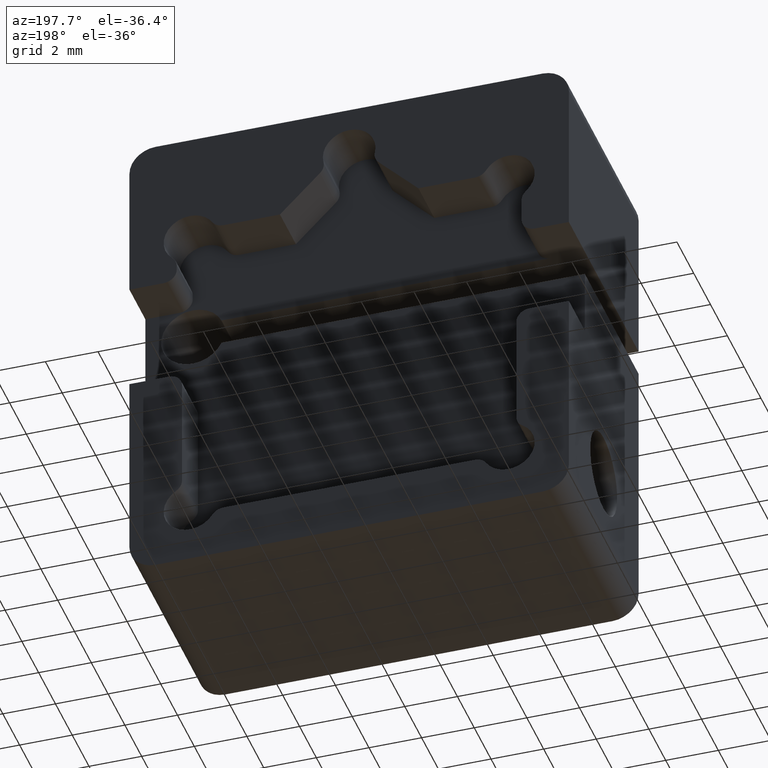
[diagram: clean part render]
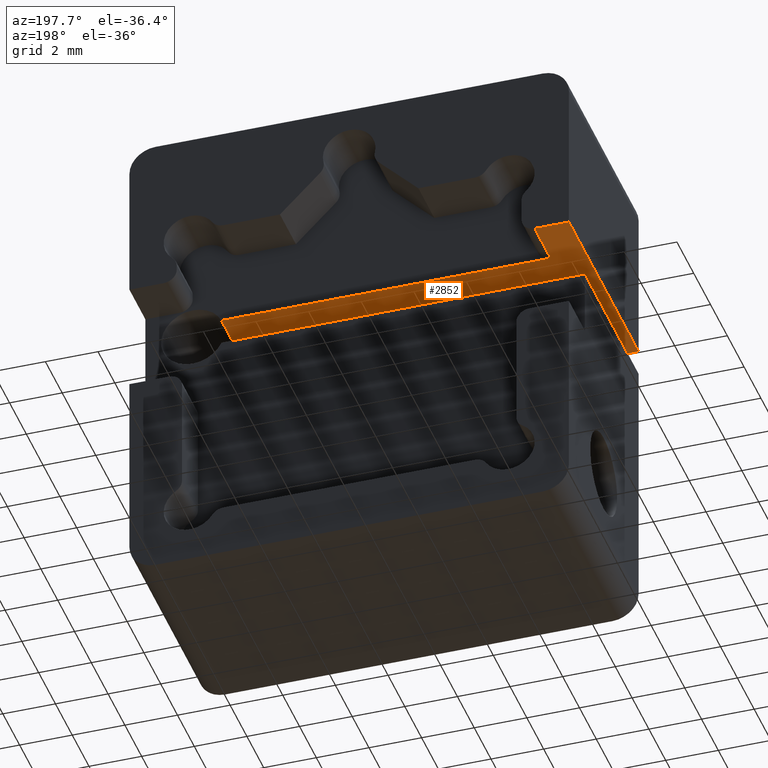
[diagram: same view with one face highlighted and labeled with its STEP entity id]
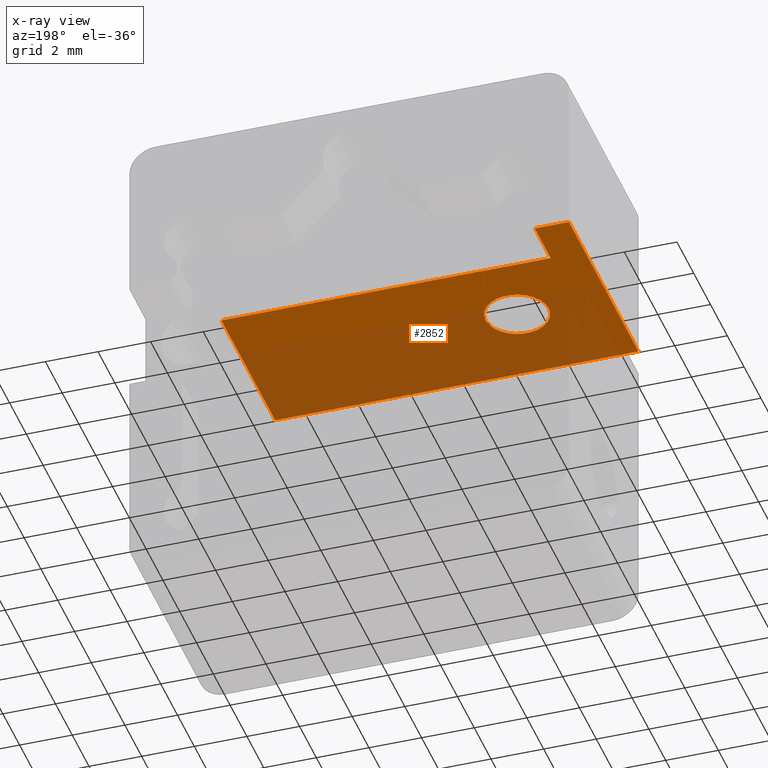
[diagram: x-ray of the same camera — body ghosted, the highlighted face saturated]
A machine part, auxiliary view. The second image highlights one B-rep face of the part: STEP entity #2852.
The next image is the same camera in x-ray: the body ghosted, the highlighted face saturated — about 60% of this face is hidden behind the body in this view.
In plain terms, the highlighted planar face has unit normal (-0, 0, 1).
Its self-contained STEP definition (entity closure, byte-faithful):
#29 = EDGE_CURVE ( 'NONE', #2679, #2850, #478, .T. ) ;
#38 = CARTESIAN_POINT ( 'NONE',  ( 5.459128788536435017, 0.000000000000000000, 2.500000000000003997 ) ) ;
#91 = EDGE_CURVE ( 'NONE', #1171, #2679, #292, .T. ) ;
#162 = VERTEX_POINT ( 'NONE', #1281 ) ;
#197 = CARTESIAN_POINT ( 'NONE',  ( 5.459128788536435017, 0.000000000000000000, 2.500000000000004441 ) ) ;
#292 = LINE ( 'NONE', #718, #1452 ) ;
#373 = CARTESIAN_POINT ( 'NONE',  ( 5.459128788536435017, 6.399999999999998579, 2.500000000000003997 ) ) ;
#433 = AXIS2_PLACEMENT_3D ( 'NONE', #610, #2752, #2767 ) ;
#445 = CARTESIAN_POINT ( 'NONE',  ( -4.849999999999996980, 3.500000000000000000, 2.500000000000003109 ) ) ;
#478 = LINE ( 'NONE', #2161, #2700 ) ;
#481 = AXIS2_PLACEMENT_3D ( 'NONE', #1888, #986, #2851 ) ;
#497 = EDGE_CURVE ( 'NONE', #1428, #2451, #711, .T. ) ;
#563 = DIRECTION ( 'NONE',  ( 1.000000000000000000, -0.000000000000000000, 9.421612521006090234E-17 ) ) ;
#610 = CARTESIAN_POINT ( 'NONE',  ( 5.459128788536435017, 0.000000000000000000, 2.500000000000004441 ) ) ;
#647 = VECTOR ( 'NONE', #1608, 1000.000000000000000 ) ;
#699 = EDGE_CURVE ( 'NONE', #162, #1171, #2428, .T. ) ;
#711 = CIRCLE ( 'NONE', #3053, 1.199999999999998401 ) ;
#718 = CARTESIAN_POINT ( 'NONE',  ( -7.049999999999997158, 0.000000000000000000, 2.500000000000003109 ) ) ;
#789 = EDGE_CURVE ( 'NONE', #2550, #2235, #3002, .T. ) ;
#841 = VECTOR ( 'NONE', #563, 1000.000000000000000 ) ;
#895 = CARTESIAN_POINT ( 'NONE',  ( 5.459128788536435017, 0.000000000000000000, 2.500000000000003997 ) ) ;
#911 = ORIENTED_EDGE ( 'NONE', *, *, #789, .F. ) ;
#986 = DIRECTION ( 'NONE',  ( -9.421612521006091466E-17, 0.000000000000000000, 1.000000000000000000 ) ) ;
#1110 = EDGE_LOOP ( 'NONE', ( #2098, #1866, #2192, #3060, #911, #1949 ) ) ;
#1127 = CARTESIAN_POINT ( 'NONE',  ( -8.349999999999999645, 0.000000000000000000, 2.500000000000003109 ) ) ;
#1161 = LINE ( 'NONE', #1127, #2135 ) ;
#1171 = VERTEX_POINT ( 'NONE', #3008 ) ;
#1238 = VECTOR ( 'NONE', #2542, 1000.000000000000000 ) ;
#1258 = CARTESIAN_POINT ( 'NONE',  ( -6.049999999999994493, 3.500000000000000000, 2.500000000000003109 ) ) ;
#1281 = CARTESIAN_POINT ( 'NONE',  ( -8.349999999999999645, 8.300000000000000711, 2.500000000000003109 ) ) ;
#1284 = CIRCLE ( 'NONE', #481, 1.199999999999998401 ) ;
#1428 = VERTEX_POINT ( 'NONE', #1258 ) ;
#1452 = VECTOR ( 'NONE', #2873, 1000.000000000000000 ) ;
#1608 = DIRECTION ( 'NONE',  ( -0.000000000000000000, 1.000000000000000000, -0.000000000000000000 ) ) ;
#1637 = ORIENTED_EDGE ( 'NONE', *, *, #497, .T. ) ;
#1686 = DIRECTION ( 'NONE',  ( 1.000000000000000000, 0.000000000000000000, 0.000000000000000000 ) ) ;
#1708 = DIRECTION ( 'NONE',  ( 1.000000000000000000, -0.000000000000000000, 9.421612521006091466E-17 ) ) ;
#1746 = CARTESIAN_POINT ( 'NONE',  ( -7.049999999999998046, 6.400000000000000355, 2.500000000000003109 ) ) ;
#1792 = PLANE ( 'NONE',  #433 ) ;
#1810 = CARTESIAN_POINT ( 'NONE',  ( -3.649999999999998135, 3.500000000000000000, 2.500000000000003109 ) ) ;
#1843 = DIRECTION ( 'NONE',  ( -0.000000000000000000, 1.000000000000000000, -0.000000000000000000 ) ) ;
#1866 = ORIENTED_EDGE ( 'NONE', *, *, #91, .T. ) ;
#1888 = CARTESIAN_POINT ( 'NONE',  ( -4.849999999999996980, 3.500000000000000000, 2.500000000000003109 ) ) ;
#1910 = DIRECTION ( 'NONE',  ( -9.421612521006091466E-17, 0.000000000000000000, 1.000000000000000000 ) ) ;
#1949 = ORIENTED_EDGE ( 'NONE', *, *, #2467, .T. ) ;
#2037 = FACE_OUTER_BOUND ( 'NONE', #1110, .T. ) ;
#2098 = ORIENTED_EDGE ( 'NONE', *, *, #699, .T. ) ;
#2135 = VECTOR ( 'NONE', #1843, 1000.000000000000000 ) ;
#2161 = CARTESIAN_POINT ( 'NONE',  ( -2.355403130251526626E-16, 6.400000000000000355, 2.500000000000003997 ) ) ;
#2192 = ORIENTED_EDGE ( 'NONE', *, *, #29, .T. ) ;
#2207 = CARTESIAN_POINT ( 'NONE',  ( 5.459128788536435017, 8.300000000000000711, 2.500000000000004441 ) ) ;
#2235 = VERTEX_POINT ( 'NONE', #38 ) ;
#2269 = FACE_BOUND ( 'NONE', #2613, .T. ) ;
#2400 = EDGE_CURVE ( 'NONE', #2235, #2850, #2819, .T. ) ;
#2428 = LINE ( 'NONE', #2207, #841 ) ;
#2451 = VERTEX_POINT ( 'NONE', #1810 ) ;
#2467 = EDGE_CURVE ( 'NONE', #2550, #162, #1161, .T. ) ;
#2542 = DIRECTION ( 'NONE',  ( 1.000000000000000000, -0.000000000000000000, 9.421612521006090234E-17 ) ) ;
#2550 = VERTEX_POINT ( 'NONE', #2589 ) ;
#2586 = ORIENTED_EDGE ( 'NONE', *, *, #2612, .T. ) ;
#2589 = CARTESIAN_POINT ( 'NONE',  ( -8.349999999999999645, 0.000000000000000000, 2.500000000000003109 ) ) ;
#2612 = EDGE_CURVE ( 'NONE', #2451, #1428, #1284, .T. ) ;
#2613 = EDGE_LOOP ( 'NONE', ( #2586, #1637 ) ) ;
#2679 = VERTEX_POINT ( 'NONE', #1746 ) ;
#2700 = VECTOR ( 'NONE', #1708, 1000.000000000000000 ) ;
#2752 = DIRECTION ( 'NONE',  ( -9.421612521006091466E-17, 0.000000000000000000, 1.000000000000000000 ) ) ;
#2767 = DIRECTION ( 'NONE',  ( 1.000000000000000000, 0.000000000000000000, 9.421612521006091466E-17 ) ) ;
#2819 = LINE ( 'NONE', #895, #647 ) ;
#2850 = VERTEX_POINT ( 'NONE', #373 ) ;
#2851 = DIRECTION ( 'NONE',  ( 1.000000000000000000, 0.000000000000000000, 0.000000000000000000 ) ) ;
#2852 = ADVANCED_FACE ( 'NONE', ( #2269, #2037 ), #1792, .F. ) ;
#2873 = DIRECTION ( 'NONE',  ( -0.000000000000000000, -1.000000000000000000, -0.000000000000000000 ) ) ;
#3002 = LINE ( 'NONE', #197, #1238 ) ;
#3008 = CARTESIAN_POINT ( 'NONE',  ( -7.049999999999997158, 8.300000000000000711, 2.500000000000003109 ) ) ;
#3053 = AXIS2_PLACEMENT_3D ( 'NONE', #445, #1910, #1686 ) ;
#3060 = ORIENTED_EDGE ( 'NONE', *, *, #2400, .F. ) ;